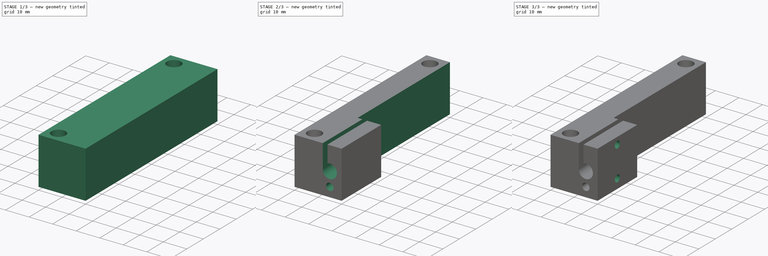
[diagram: build sequence overview — one tinted view per stage of 3, left to right]
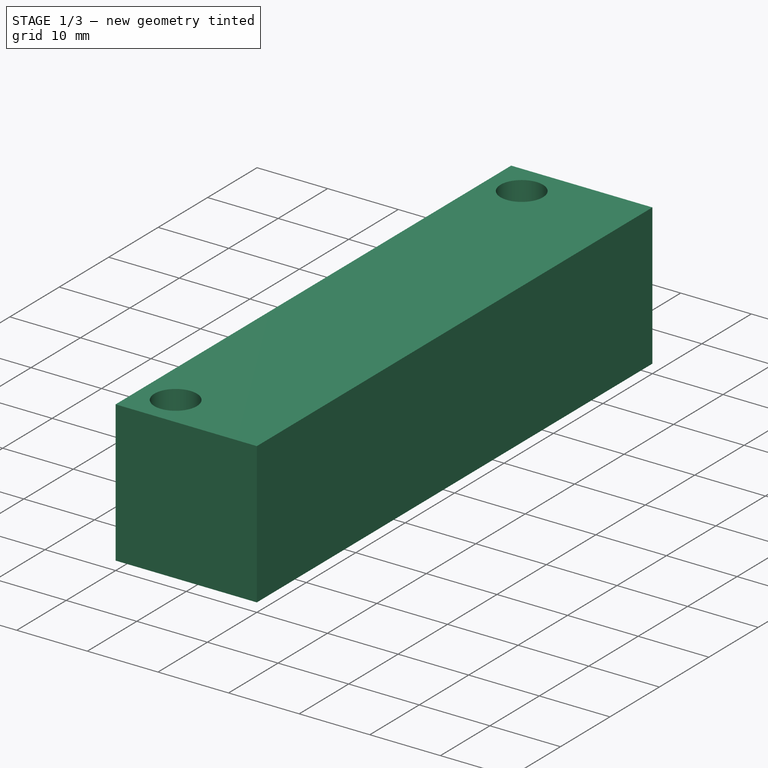
[diagram: stage 1 of 3 — iso view after this stage's code; geometry added in this stage tinted green]
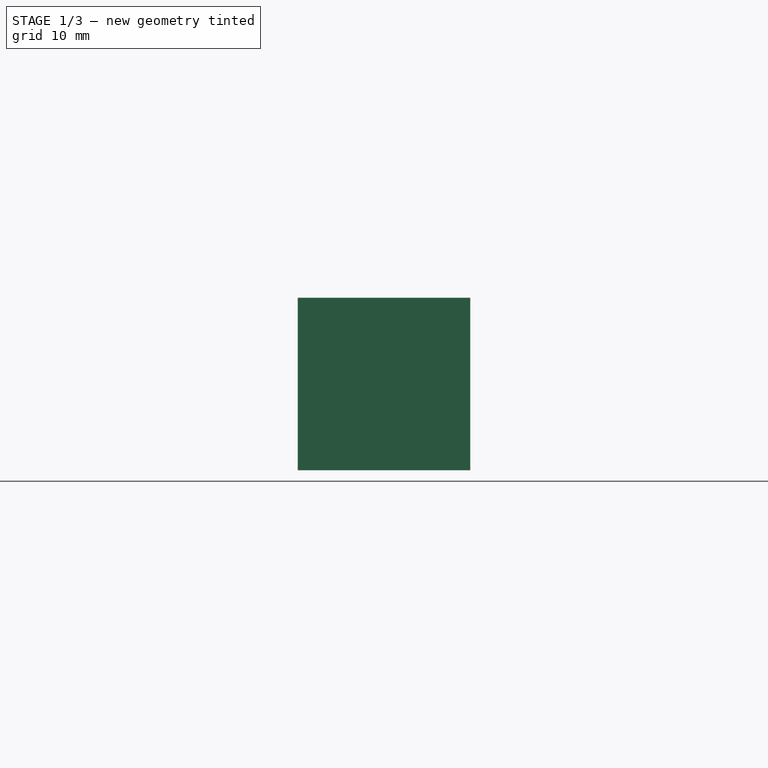
[diagram: stage 1 of 3 — front view after this stage's code; geometry added in this stage tinted green]
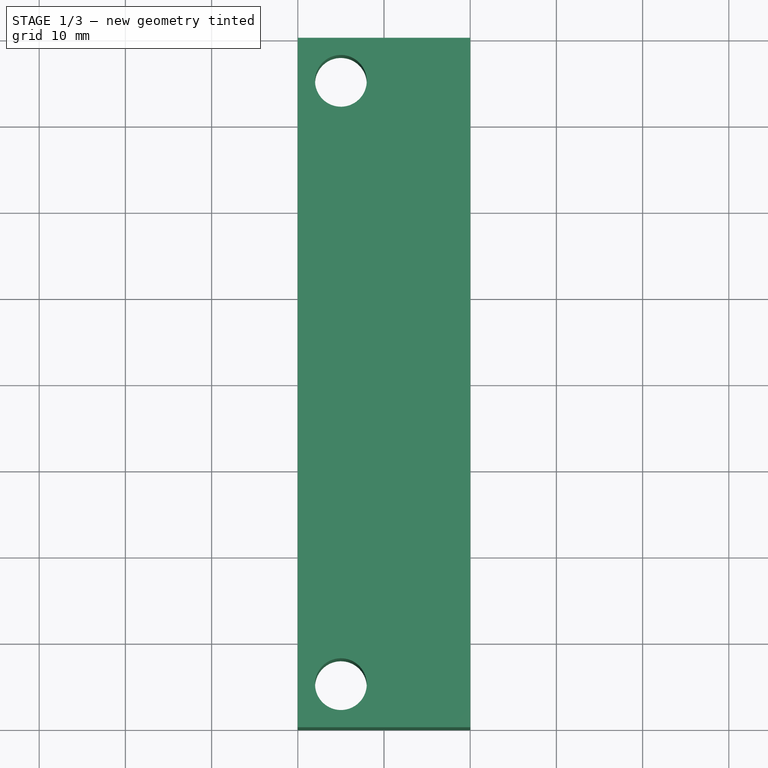
[diagram: stage 1 of 3 — top view after this stage's code; geometry added in this stage tinted green]
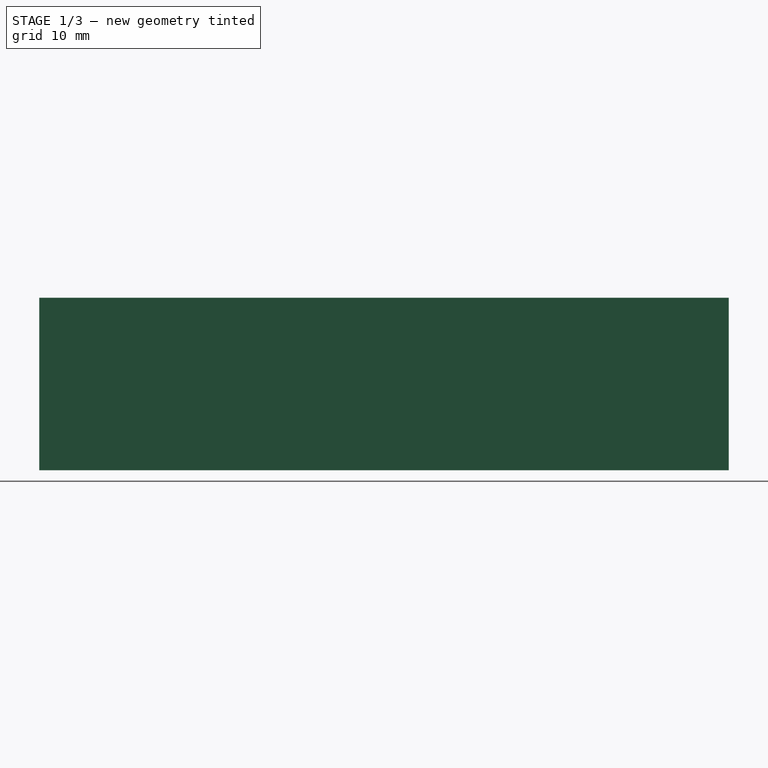
[diagram: stage 1 of 3 — right view after this stage's code; geometry added in this stage tinted green]
FCSTD DOCUMENT  (FreeCAD 0.17R11141 (Git))
Label: fourhead_half_heater_block
License: All rights reserved
LicenseURL: http://en.wikipedia.org/wiki/All_rights_reserved
objects: Sketcher::SketchObject×7, PartDesign::Pocket×6, PartDesign::Pad×1, PartDesign::Body×1
note: 22 computed .brp shape members not serialized (recipe doc carries the construction recipe); baked Part::Feature solids carry a one-line shape summary decoded from their .brp

FEATURE [Sketcher::SketchObject] Sketch
  MapMode = 5
  Placement = pos=(0,0,0) rot=(1,0,0;1.5708rad)
  Support = -> [XZ_Plane]
  sketch-geometry (4):
    g0: LineSegment StartX=0 StartY=0 StartZ=0 EndX=20 EndY=0 EndZ=0
    g1: LineSegment StartX=20 StartY=0 StartZ=0 EndX=20 EndY=20 EndZ=0
    g2: LineSegment StartX=20 StartY=20 StartZ=0 EndX=0 EndY=20 EndZ=0
    g3: LineSegment StartX=0 StartY=20 StartZ=0 EndX=0 EndY=0 EndZ=0
  constraints (11):
    c: Coincident(g0,g1)
    c: Coincident(g1,g2)
    c: Coincident(g2,g3)
    c: Coincident(g3,g0)
    c: Horizontal(g0)
    c: Horizontal(g2)
    c: Vertical(g1)
    c: Vertical(g3)
    c: Coincident(g0,g-1)
    c: DistanceY(g3,g3) = 20
    c: DistanceX(g2,g2) = 20
FEATURE [PartDesign::Pad] Pad
  Length = 80
  Length2 = 100
  Placement = pos=(0,0,0) rot=(1,0,0;1.5708rad)
  Profile = -> Sketch
  Type = 0
FEATURE [Sketcher::SketchObject] Sketch001
  ExternalGeometry = -> [Pad]
  MapMode = 5
  Placement = pos=(0,0,20) rot=(0,0,1;3.14159rad)
  Support = -> [Pad]
  sketch-geometry (5):
    g0: Circle CenterX=-5 CenterY=5 CenterZ=0 NormalX=0 NormalY=0 NormalZ=1 Radius=3
    g1: Circle CenterX=-5 CenterY=75 CenterZ=0 NormalX=0 NormalY=0 NormalZ=1 Radius=3
    g2: LineSegment [constr] StartX=-5 StartY=75 StartZ=0 EndX=-5 EndY=5 EndZ=0
    g3: LineSegment [constr] StartX=-5 StartY=5 StartZ=0 EndX=0 EndY=0 EndZ=0
    g4: LineSegment [constr] StartX=-5 StartY=75 StartZ=0 EndX=0 EndY=80 EndZ=0
  constraints (12):
    c: Coincident(g2,g1)
    c: Coincident(g2,g0)
    c: Vertical(g2)
    c: Coincident(g3,g0)
    c: Coincident(g3,g-1)
    c: Coincident(g4,g1)
    c: Coincident(g4,g-3)
    c: Equal(g4,g3)
    c: Equal(g0,g1)
    c: Radius(g1) = 3
    c: DistanceY(g2,g2) = 70
    c: DistanceX(g1,g4) = 5
FEATURE [PartDesign::Pocket] Pocket
  BaseFeature = -> Pad
  Length = 5
  Placement = pos=(0,0,0) rot=(1,0,0;1.5708rad)
  Profile = -> Sketch001
  Type = 1
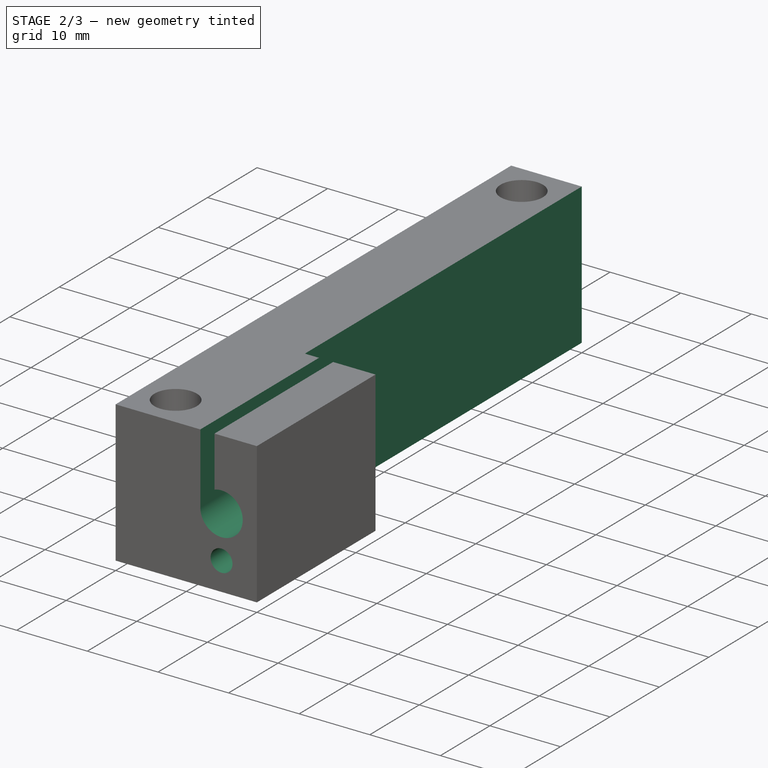
[diagram: stage 2 of 3 — iso view after this stage's code; geometry added in this stage tinted green]
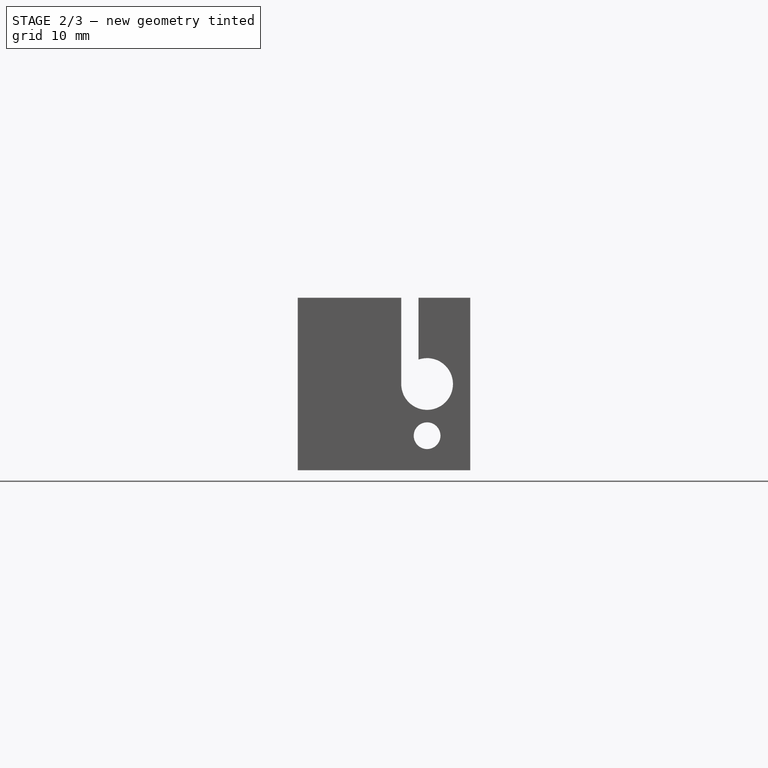
[diagram: stage 2 of 3 — front view after this stage's code; geometry added in this stage tinted green]
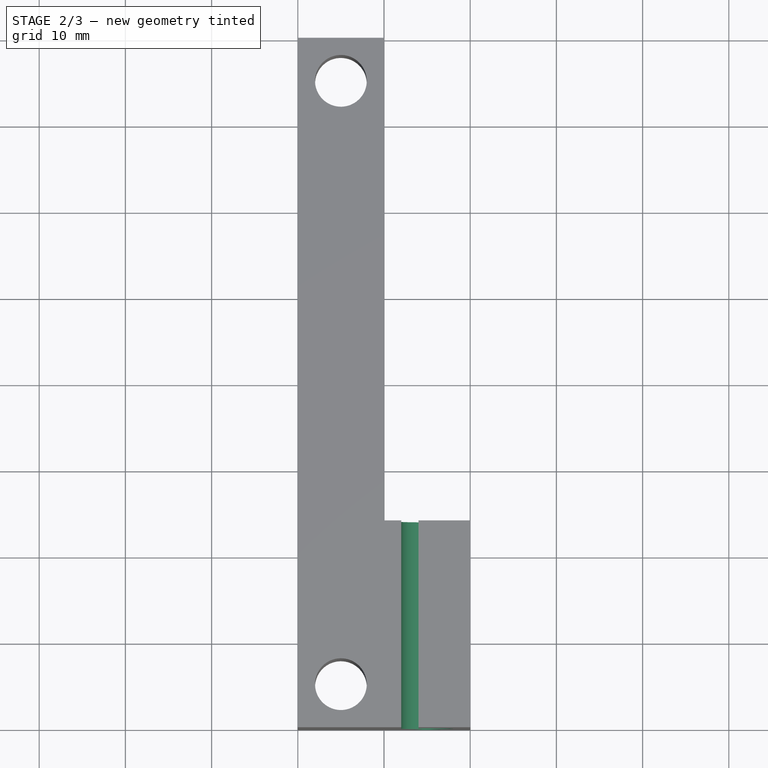
[diagram: stage 2 of 3 — top view after this stage's code; geometry added in this stage tinted green]
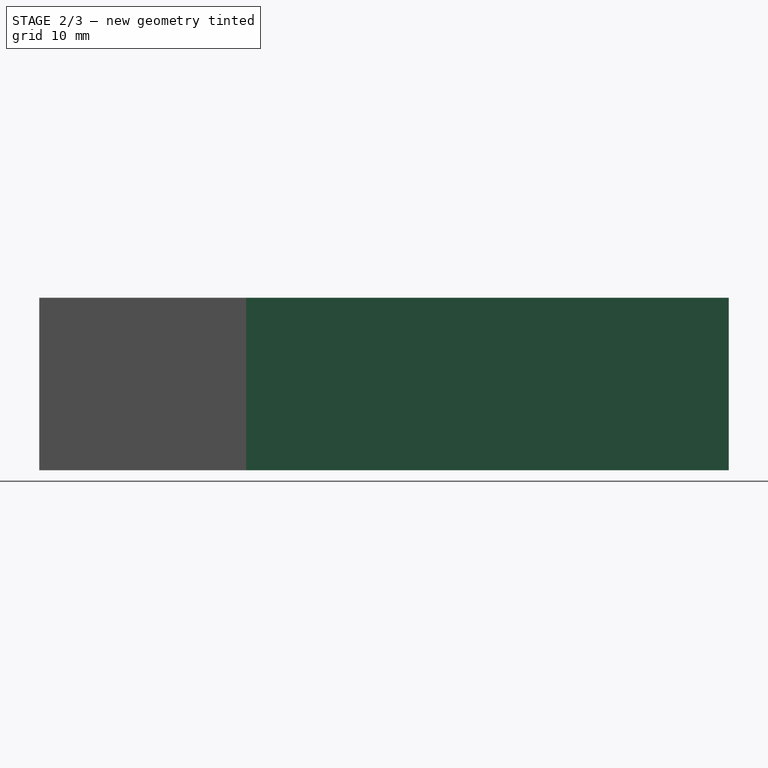
[diagram: stage 2 of 3 — right view after this stage's code; geometry added in this stage tinted green]
FEATURE [Sketcher::SketchObject] Sketch002
  ExternalGeometry = -> [Pocket]
  MapMode = 5
  Placement = pos=(0,0,20) rot=(0,0,1;3.14159rad)
  Support = -> [Pocket]
  sketch-geometry (14):
    g0: LineSegment [constr] StartX=-16 StartY=78 StartZ=0 EndX=-10 EndY=78 EndZ=0
    g1: LineSegment [constr] StartX=-10 StartY=78 StartZ=0 EndX=-10 EndY=58 EndZ=0
    g2: LineSegment [constr] StartX=-10 StartY=58 StartZ=0 EndX=-16 EndY=58 EndZ=0
    g3: LineSegment [constr] StartX=-16 StartY=58 StartZ=0 EndX=-16 EndY=78 EndZ=0
    g4: LineSegment [constr] StartX=-20 StartY=80 StartZ=0 EndX=-16 EndY=78 EndZ=0
    g5: LineSegment [constr] StartX=-16 StartY=58 StartZ=0 EndX=-20 EndY=0 EndZ=0
    g6: LineSegment [constr] StartX=-16 StartY=78 StartZ=0 EndX=-17 EndY=68 EndZ=0
    g7: LineSegment [constr] StartX=-17 StartY=68 StartZ=0 EndX=-16 EndY=58 EndZ=0
    g8: LineSegment [constr] StartX=-8 StartY=75 StartZ=0 EndX=-8 EndY=5 EndZ=0
    g9: LineSegment [constr] StartX=-10 StartY=58 StartZ=0 EndX=-8 EndY=58 EndZ=0
    g10: LineSegment StartX=-20 StartY=56 StartZ=0 EndX=-10 EndY=56 EndZ=0
    g11: LineSegment StartX=-10 StartY=56 StartZ=0 EndX=-10 EndY=0 EndZ=0
    g12: LineSegment StartX=-10 StartY=0 StartZ=0 EndX=-20 EndY=0 EndZ=0
    g13: LineSegment StartX=-20 StartY=0 StartZ=0 EndX=-20 EndY=56 EndZ=0
  constraints (40):
    c: Coincident(g0,g1)
    c: Coincident(g1,g2)
    c: Coincident(g2,g3)
    c: Coincident(g3,g0)
    c: Horizontal(g0)
    c: Horizontal(g2)
    c: Vertical(g1)
    c: Vertical(g3)
    c: DistanceX(g0,g0) = 6
    c: DistanceY(g3,g3) = 20
    c: Coincident(g4,g-3)
    c: Coincident(g4,g0)
    c: Coincident(g5,g2)
    c: Coincident(g5,g-3)
    c: Coincident(g0,g6)
    c: Coincident(g6,g7)
    c: Coincident(g7,g2)
    c: Equal(g7,g6)
    c: DistanceX(g4,g6) = 3
    c: PointOnObject(g8,g-4)
    c: PointOnObject(g8,g-5)
    c: Vertical(g8)
    c: Tangent(g-5,g8)
    c: Coincident(g9,g1)
    c: PointOnObject(g9,g8)
    c: PointOnObject(g2,g9)
    c: DistanceX(g9,g9) = 2
    c: Coincident(g10,g11)
    c: Coincident(g11,g12)
    c: Coincident(g12,g13)
    c: Coincident(g13,g10)
    c: Horizontal(g10)
    c: Horizontal(g12)
    c: Vertical(g11)
    c: Vertical(g13)
    c: PointOnObject(g10,g-3)
    c: PointOnObject(g11,g-1)
    c: PointOnObject(g1,g11)
    c: DistanceY(g10,g2) = 2
    c: DistanceY(g0,g4) = 2
FEATURE [PartDesign::Pocket] Pocket001
  BaseFeature = -> Pocket
  Length = 5
  Placement = pos=(0,0,0) rot=(1,0,0;1.5708rad)
  Profile = -> Sketch002
  Type = 1
FEATURE [Sketcher::SketchObject] Sketch003
  ExternalGeometry = -> [Pocket001]
  MapMode = 5
  Placement = pos=(0,-80,0) rot=(1,0,0;1.5708rad)
  Support = -> [Pocket001]
  sketch-geometry (3):
    g0: Circle CenterX=15 CenterY=10 CenterZ=0 NormalX=0 NormalY=0 NormalZ=1 Radius=3
    g1: Circle CenterX=15 CenterY=4 CenterZ=0 NormalX=0 NormalY=0 NormalZ=1 Radius=1.55
    g2: LineSegment [constr] StartX=15 StartY=10 StartZ=0 EndX=15 EndY=4 EndZ=0
  constraints (8):
    c: Radius(g0) = 3
    c: DistanceX(g0,g-3) = 5
    c: DistanceY(g0,g-3) = 10
    c: Coincident(g2,g0)
    c: Coincident(g2,g1)
    c: Vertical(g2)
    c: DistanceY(g2,g2) = 6
    c: Radius(g1) = 1.55
FEATURE [PartDesign::Pocket] Pocket002
  BaseFeature = -> Pocket001
  Length = 5
  Placement = pos=(0,0,0) rot=(1,0,0;1.5708rad)
  Profile = -> Sketch003
  Type = 1
FEATURE [Sketcher::SketchObject] Sketch004
  ExternalGeometry = -> [Pocket002]
  MapMode = 5
  Placement = pos=(0,0,20) rot=(0,0,1;3.14159rad)
  Support = -> [Pocket002]
  sketch-geometry (4):
    g0: LineSegment StartX=-14 StartY=56 StartZ=0 EndX=-12 EndY=56 EndZ=0
    g1: LineSegment StartX=-12 StartY=56 StartZ=0 EndX=-12 EndY=80 EndZ=0
    g2: LineSegment StartX=-12 StartY=80 StartZ=0 EndX=-14 EndY=80 EndZ=0
    g3: LineSegment StartX=-14 StartY=80 StartZ=0 EndX=-14 EndY=56 EndZ=0
  constraints (12):
    c: Coincident(g0,g1)
    c: Coincident(g1,g2)
    c: Coincident(g2,g3)
    c: Coincident(g3,g0)
    c: Horizontal(g0)
    c: Horizontal(g2)
    c: Vertical(g1)
    c: Vertical(g3)
    c: PointOnObject(g0,g-3)
    c: PointOnObject(g1,g-4)
    c: DistanceX(g2,g2) = 2
    c: DistanceX(g-5,g0) = 4
FEATURE [PartDesign::Pocket] Pocket003
  BaseFeature = -> Pocket002
  Length = 10
  Placement = pos=(0,0,0) rot=(1,0,0;1.5708rad)
  Profile = -> Sketch004
  Type = 0
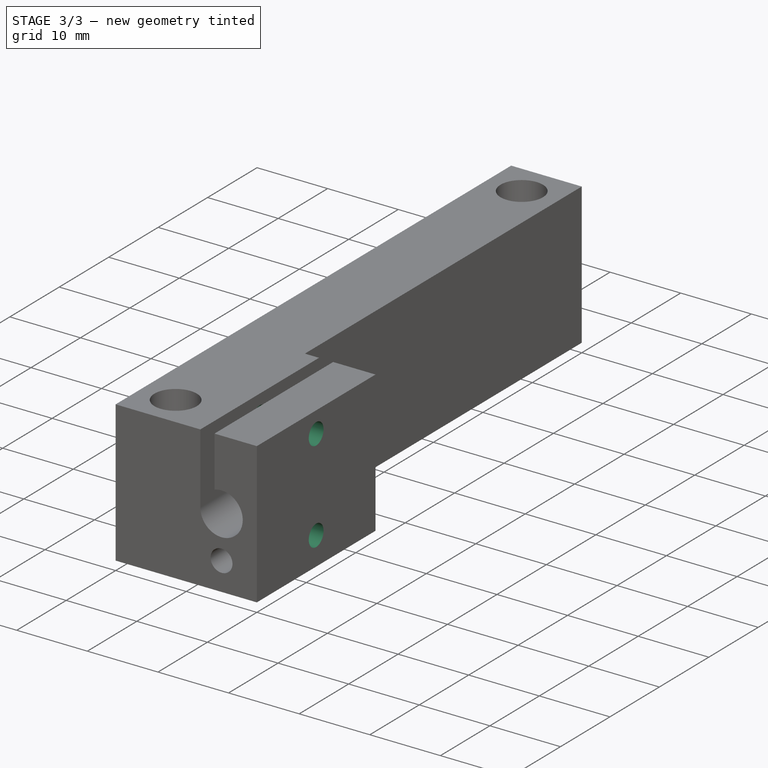
[diagram: stage 3 of 3 — iso view after this stage's code; geometry added in this stage tinted green]
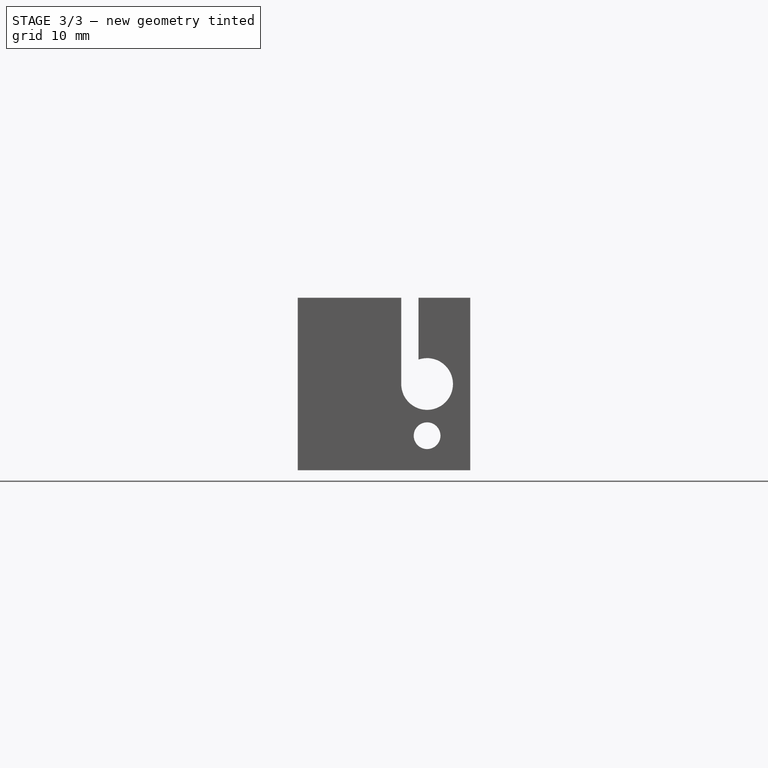
[diagram: stage 3 of 3 — front view after this stage's code; geometry added in this stage tinted green]
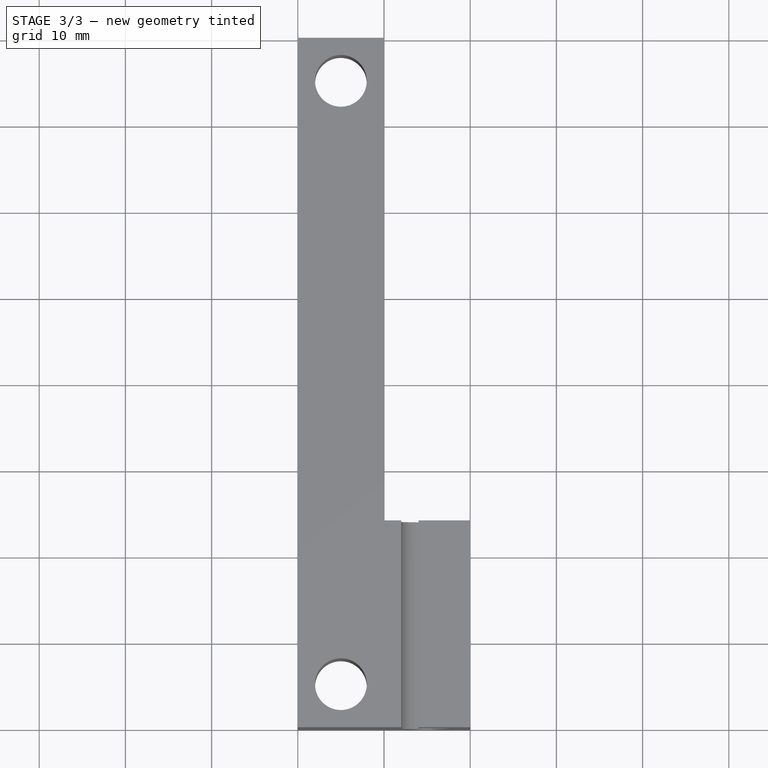
[diagram: stage 3 of 3 — top view after this stage's code; geometry added in this stage tinted green]
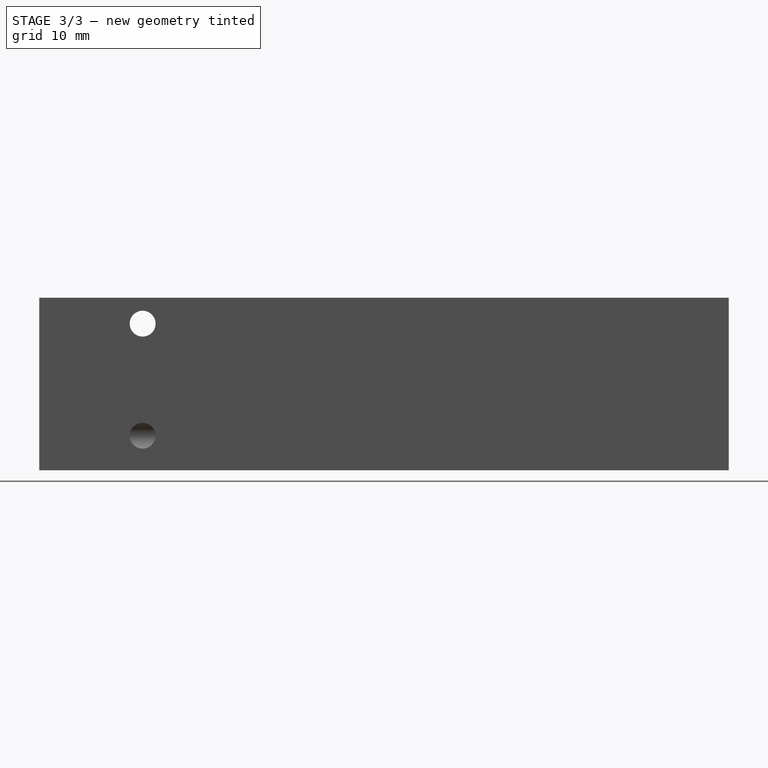
[diagram: stage 3 of 3 — right view after this stage's code; geometry added in this stage tinted green]
FEATURE [Sketcher::SketchObject] Sketch005
  ExternalGeometry = -> [Pocket003]
  MapMode = 5
  Placement = pos=(20,0,0) rot=(0.707107,0,0.707107;3.14159rad)
  Support = -> [Pocket003]
  sketch-geometry (6):
    g0: LineSegment [constr] StartX=0 StartY=80 StartZ=0 EndX=4 EndY=68 EndZ=0
    g1: LineSegment [constr] StartX=4 StartY=68 StartZ=0 EndX=0 EndY=56 EndZ=0
    g2: LineSegment [constr] StartX=0 StartY=80 StartZ=0 EndX=17 EndY=68 EndZ=0
    g3: LineSegment [constr] StartX=17 StartY=68 StartZ=0 EndX=0 EndY=56 EndZ=0
    g4: Circle CenterX=4 CenterY=68 CenterZ=0 NormalX=0 NormalY=0 NormalZ=1 Radius=1.5
    g5: Circle [constr] CenterX=17 CenterY=68 CenterZ=0 NormalX=0 NormalY=0 NormalZ=1 Radius=1.5
  constraints (14):
    c: Coincident(g-3,g0)
    c: Coincident(g0,g1)
    c: Coincident(g1,g-3)
    c: Coincident(g0,g2)
    c: Coincident(g2,g3)
    c: Coincident(g3,g1)
    c: Equal(g1,g0)
    c: Equal(g3,g2)
    c: Coincident(g4,g0)
    c: Coincident(g5,g2)
    c: Equal(g4,g5)
    c: Radius(g5) = 1.5
    c: PointOnObject(g0,g-4)
    c: DistanceX(g0,g2) = 17
FEATURE [PartDesign::Pocket] Pocket004
  BaseFeature = -> Pocket003
  Length = 5
  Placement = pos=(0,0,0) rot=(1,0,0;1.5708rad)
  Profile = -> Sketch005
  Type = 0
FEATURE [Sketcher::SketchObject] Sketch006
  ExternalGeometry = -> [Pocket004]
  MapMode = 5
  Placement = pos=(20,0,0) rot=(0.707107,0,0.707107;3.14159rad)
  Support = -> [Pocket004]
  sketch-geometry (3):
    g0: LineSegment [constr] StartX=20 StartY=80 StartZ=0 EndX=17 EndY=68 EndZ=0
    g1: LineSegment [constr] StartX=17 StartY=68 StartZ=0 EndX=20 EndY=56 EndZ=0
    g2: Circle CenterX=17 CenterY=68 CenterZ=0 NormalX=0 NormalY=0 NormalZ=1 Radius=1.5
  constraints (7):
    c: Coincident(g-3,g0)
    c: Coincident(g0,g1)
    c: Coincident(g1,g-3)
    c: Equal(g1,g0)
    c: DistanceX(g-1,g0) = 17
    c: Coincident(g2,g0)
    c: Radius(g2) = 1.5
FEATURE [PartDesign::Pocket] Pocket005
  BaseFeature = -> Pocket004
  Length = 5
  Placement = pos=(0,0,0) rot=(1,0,0;1.5708rad)
  Profile = -> Sketch006
  Type = 1
FEATURE [PartDesign::Body] Body
  Group = -> [Sketch,Pad,Sketch001,Pocket,Sketch002,Pocket001,Sketch003,Pocket002,Sketch004,Pocket003,Sketch005,Pocket004,Sketch006,Pocket005]
  Origin = -> BodyOrigin
  Tip = -> Pocket005
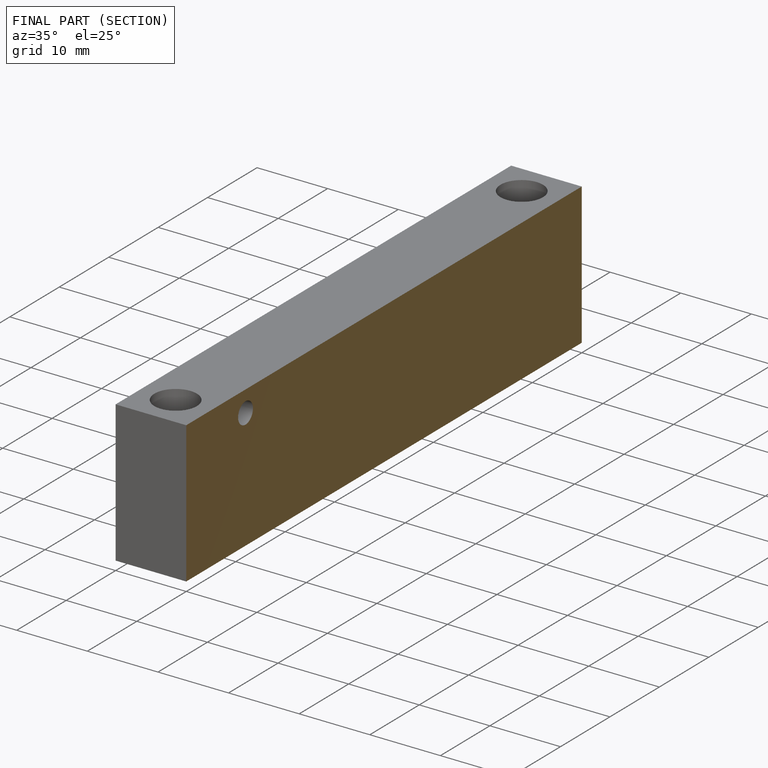
[diagram: finished part — half-section view (interior)]
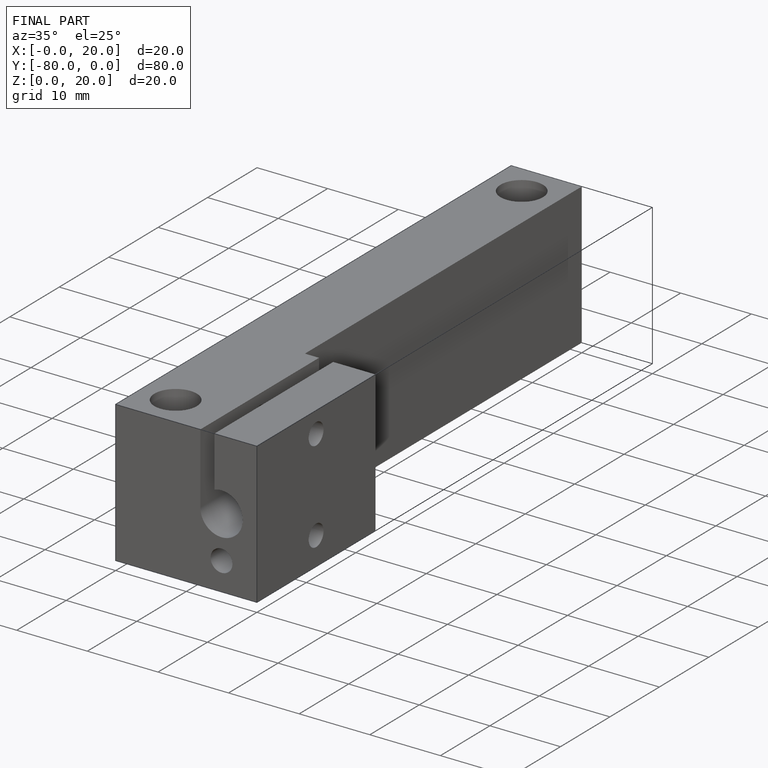
[diagram: finished part — iso view with bounding-box wireframe]
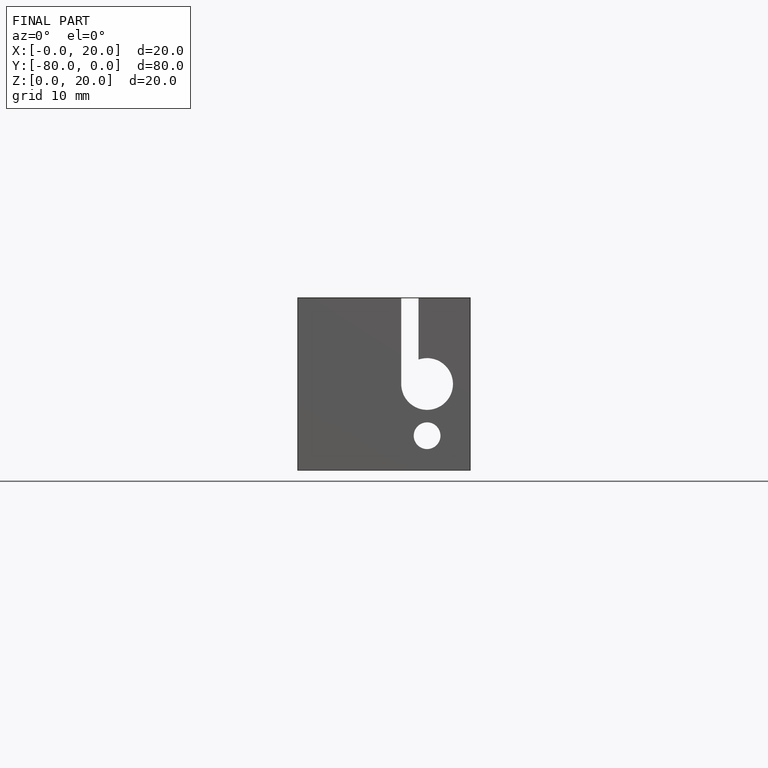
[diagram: finished part — front view with bounding-box wireframe]
